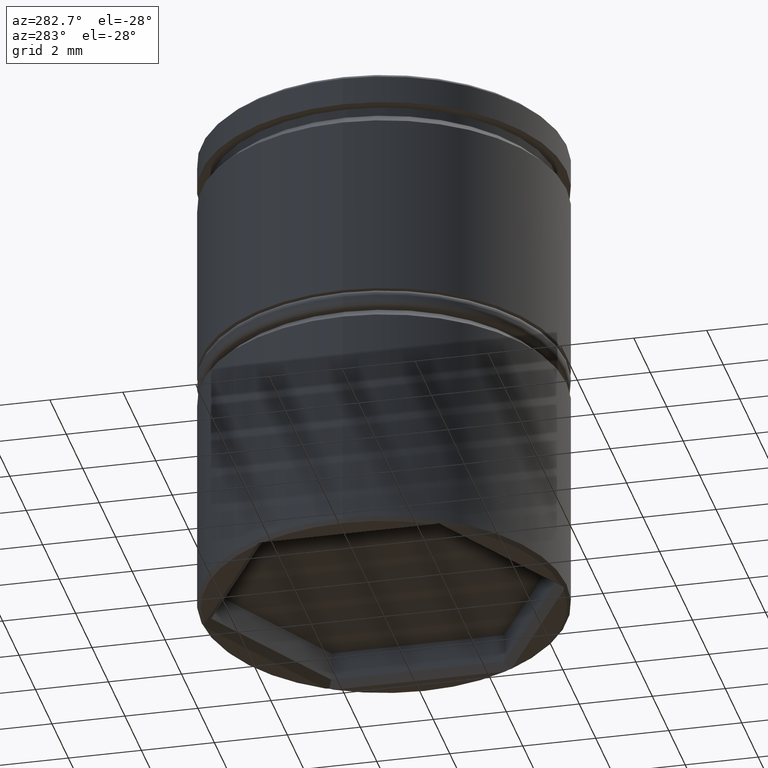
[diagram: clean part render]
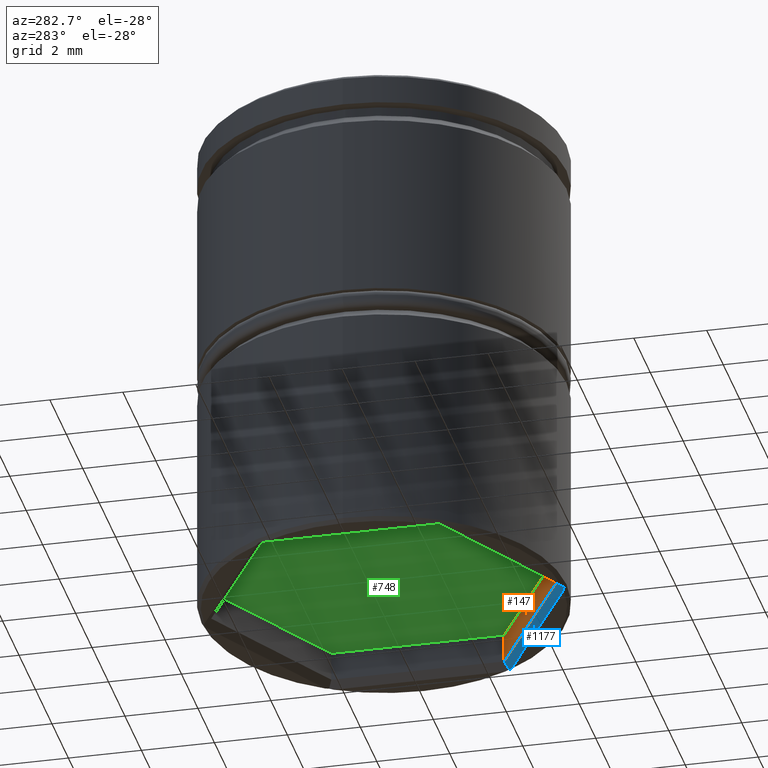
[diagram: same view with three faces highlighted in distinct colors, each labeled with its STEP entity id]
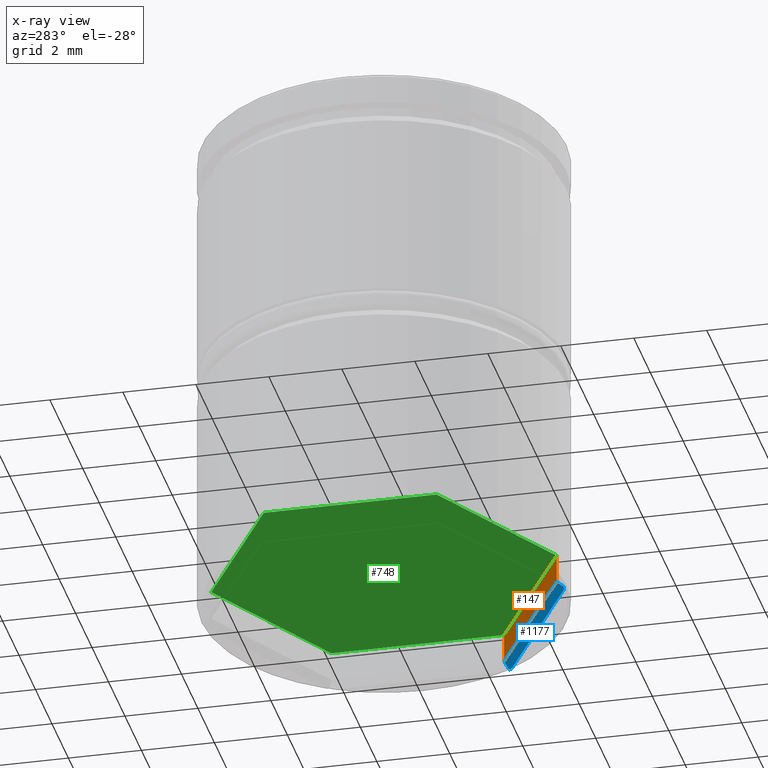
[diagram: x-ray of the same camera — body ghosted, the three highlighted faces saturated]
A machine part, auxiliary view with three faces highlighted in distinct colors.
The next image is the same camera in x-ray (body ghosted, the three faces saturated) — at least one of them is partly hidden behind the body in this view.
Their STEP definitions:

[orange] entity #147 — the highlighted planar face has unit normal (0.5, -0.866, 0).
#27 = CARTESIAN_POINT ( 'NONE',  ( 4.100000000000003197, -2.367136103677467407, -12.50000000000000000 ) ) ;
#48 = CARTESIAN_POINT ( 'NONE',  ( 4.100000000000003197, -2.367136103677467407, -12.50000000000000000 ) ) ;
#57 = LINE ( 'NONE', #398, #713 ) ;
#122 = ORIENTED_EDGE ( 'NONE', *, *, #646, .F. ) ;
#129 = DIRECTION ( 'NONE',  ( 0.4999999999999998890, -0.8660254037844387076, 0.000000000000000000 ) ) ;
#147 = ADVANCED_FACE ( 'NONE', ( #875 ), #996, .F. ) ;
#202 = LINE ( 'NONE', #626, #221 ) ;
#207 = DIRECTION ( 'NONE',  ( -0.000000000000000000, -0.000000000000000000, -1.000000000000000000 ) ) ;
#217 = ORIENTED_EDGE ( 'NONE', *, *, #1147, .T. ) ;
#221 = VECTOR ( 'NONE', #207, 1000.000000000000000 ) ;
#252 = LINE ( 'NONE', #681, #426 ) ;
#398 = CARTESIAN_POINT ( 'NONE',  ( -1.055420340465827135E-15, -4.734272207354934814, -13.30000000000000071 ) ) ;
#404 = VECTOR ( 'NONE', #774, 1000.000000000000000 ) ;
#426 = VECTOR ( 'NONE', #661, 1000.000000000000000 ) ;
#551 = ORIENTED_EDGE ( 'NONE', *, *, #628, .T. ) ;
#617 = ORIENTED_EDGE ( 'NONE', *, *, #960, .F. ) ;
#626 = CARTESIAN_POINT ( 'NONE',  ( -8.646952822150503169E-16, -4.734272207354934814, -12.50000000000000000 ) ) ;
#628 = EDGE_CURVE ( 'NONE', #644, #1224, #787, .T. ) ;
#644 = VERTEX_POINT ( 'NONE', #27 ) ;
#646 = EDGE_CURVE ( 'NONE', #644, #1098, #252, .T. ) ;
#661 = DIRECTION ( 'NONE',  ( -0.8660254037844387076, -0.4999999999999999445, 0.000000000000000000 ) ) ;
#671 = DIRECTION ( 'NONE',  ( 0.8660254037844387076, 0.4999999999999998890, 0.000000000000000000 ) ) ;
#681 = CARTESIAN_POINT ( 'NONE',  ( 4.100000000000003197, -2.367136103677467407, -12.50000000000000000 ) ) ;
#713 = VECTOR ( 'NONE', #1030, 1000.000000000000000 ) ;
#774 = DIRECTION ( 'NONE',  ( -0.000000000000000000, -0.000000000000000000, -1.000000000000000000 ) ) ;
#787 = LINE ( 'NONE', #1076, #404 ) ;
#829 = VERTEX_POINT ( 'NONE', #1327 ) ;
#875 = FACE_OUTER_BOUND ( 'NONE', #1351, .T. ) ;
#905 = CARTESIAN_POINT ( 'NONE',  ( 4.100000000000003197, -2.367136103677467407, -13.30000000000000071 ) ) ;
#960 = EDGE_CURVE ( 'NONE', #1098, #829, #202, .T. ) ;
#996 = PLANE ( 'NONE',  #1244 ) ;
#1030 = DIRECTION ( 'NONE',  ( -0.8660254037844387076, -0.4999999999999998890, 0.000000000000000000 ) ) ;
#1076 = CARTESIAN_POINT ( 'NONE',  ( 4.100000000000003197, -2.367136103677467407, -12.50000000000000000 ) ) ;
#1080 = CARTESIAN_POINT ( 'NONE',  ( -8.646952822150503169E-16, -4.734272207354934814, -12.50000000000000000 ) ) ;
#1098 = VERTEX_POINT ( 'NONE', #1080 ) ;
#1147 = EDGE_CURVE ( 'NONE', #1224, #829, #57, .T. ) ;
#1224 = VERTEX_POINT ( 'NONE', #905 ) ;
#1244 = AXIS2_PLACEMENT_3D ( 'NONE', #48, #129, #671 ) ;
#1327 = CARTESIAN_POINT ( 'NONE',  ( -8.646952822150503169E-16, -4.734272207354934814, -13.30000000000000071 ) ) ;
#1351 = EDGE_LOOP ( 'NONE', ( #551, #217, #617, #122 ) ) ;

[blue] entity #1177 — the highlighted planar face has unit normal (-0.3536, 0.6124, -0.7071).
#57 = LINE ( 'NONE', #398, #713 ) ;
#60 = VERTEX_POINT ( 'NONE', #858 ) ;
#63 = ORIENTED_EDGE ( 'NONE', *, *, #415, .F. ) ;
#84 = AXIS2_PLACEMENT_3D ( 'NONE', #498, #820, #695 ) ;
#101 = CARTESIAN_POINT ( 'NONE',  ( 4.269734859267344085, -2.465132570366329823, -13.46973485926734249 ) ) ;
#142 = ORIENTED_EDGE ( 'NONE', *, *, #413, .T. ) ;
#203 = DIRECTION ( 'NONE',  ( -2.853449050891065749E-15, 0.7559289460184529519, 0.6546536707079788631 ) ) ;
#320 = LINE ( 'NONE', #326, #817 ) ;
#326 = CARTESIAN_POINT ( 'NONE',  ( -8.646952822150503169E-16, -4.734272207354934814, -13.30000000000000071 ) ) ;
#398 = CARTESIAN_POINT ( 'NONE',  ( -1.055420340465827135E-15, -4.734272207354934814, -13.30000000000000071 ) ) ;
#403 = PLANE ( 'NONE',  #84 ) ;
#413 = EDGE_CURVE ( 'NONE', #1240, #829, #320, .T. ) ;
#415 = EDGE_CURVE ( 'NONE', #1240, #762, #631, .T. ) ;
#439 = CARTESIAN_POINT ( 'NONE',  ( 0.1153010050624148353, -4.898643248720162546, -13.50000000000000000 ) ) ;
#440 = B_SPLINE_CURVE_WITH_KNOTS ( 'NONE', 3,
 ( #847, #575, #973, #675 ),
 .UNSPECIFIED., .F., .F.,
 ( 4, 4 ),
 ( 0.000000000000000000, 0.0001233298202642847024 ),
 .UNSPECIFIED. ) ;
#442 = ORIENTED_EDGE ( 'NONE', *, *, #1000, .F. ) ;
#447 = CARTESIAN_POINT ( 'NONE',  ( 0.03844244460728142576, -4.919964518745060467, -13.48003548125494255 ) ) ;
#498 = CARTESIAN_POINT ( 'NONE',  ( 4.100000000000003197, -2.367136103677467407, -13.30000000000000071 ) ) ;
#515 = VERTEX_POINT ( 'NONE', #101 ) ;
#559 = VECTOR ( 'NONE', #988, 1000.000000000000000 ) ;
#575 = CARTESIAN_POINT ( 'NONE',  ( 4.213247191338549413, -2.521291069032199239, -13.49012571178598208 ) ) ;
#631 = B_SPLINE_CURVE_WITH_KNOTS ( 'NONE', 3,
 ( #1064, #447, #841, #439 ),
 .UNSPECIFIED., .F., .F.,
 ( 4, 4 ),
 ( 3.715151488605455489E-19, 0.0001233298202642841874 ),
 .UNSPECIFIED. ) ;
#672 = EDGE_CURVE ( 'NONE', #762, #60, #1180, .T. ) ;
#675 = CARTESIAN_POINT ( 'NONE',  ( 4.269734859267344085, -2.465132570366329823, -13.46973485926734249 ) ) ;
#695 = DIRECTION ( 'NONE',  ( 0.8660254037844387076, 0.4999999999999998890, 0.000000000000000000 ) ) ;
#713 = VECTOR ( 'NONE', #1030, 1000.000000000000000 ) ;
#716 = EDGE_LOOP ( 'NONE', ( #442, #794, #63, #142, #1215, #728 ) ) ;
#728 = ORIENTED_EDGE ( 'NONE', *, *, #1204, .T. ) ;
#762 = VERTEX_POINT ( 'NONE', #1354 ) ;
#793 = FACE_OUTER_BOUND ( 'NONE', #716, .T. ) ;
#794 = ORIENTED_EDGE ( 'NONE', *, *, #672, .F. ) ;
#817 = VECTOR ( 'NONE', #203, 1000.000000000000227 ) ;
#820 = DIRECTION ( 'NONE',  ( -0.3535533905932741194, 0.6123724356957952475, -0.7071067811865467956 ) ) ;
#829 = VERTEX_POINT ( 'NONE', #1327 ) ;
#841 = CARTESIAN_POINT ( 'NONE',  ( 0.07687852044743420654, -4.909424634638718921, -13.49012571178598208 ) ) ;
#847 = CARTESIAN_POINT ( 'NONE',  ( 4.184698994937584793, -2.549175223826011472, -13.50000000000000000 ) ) ;
#858 = CARTESIAN_POINT ( 'NONE',  ( 4.184698994937584793, -2.549175223826011472, -13.50000000000000000 ) ) ;
#905 = CARTESIAN_POINT ( 'NONE',  ( 4.100000000000003197, -2.367136103677467407, -13.30000000000000071 ) ) ;
#913 = DIRECTION ( 'NONE',  ( 0.6546536707079775308, -0.3779644730092258098, -0.6546536707079775308 ) ) ;
#973 = CARTESIAN_POINT ( 'NONE',  ( 4.241593036647661741, -2.493274392986013055, -13.48003548125494255 ) ) ;
#988 = DIRECTION ( 'NONE',  ( 0.8660254037844387076, 0.4999999999999998890, 0.000000000000000000 ) ) ;
#1000 = EDGE_CURVE ( 'NONE', #60, #515, #440, .T. ) ;
#1023 = CARTESIAN_POINT ( 'NONE',  ( 8.272119709809673951E-17, -4.930265140732660534, -13.46973485926734426 ) ) ;
#1030 = DIRECTION ( 'NONE',  ( -0.8660254037844387076, -0.4999999999999998890, 0.000000000000000000 ) ) ;
#1064 = CARTESIAN_POINT ( 'NONE',  ( 8.272119709809673951E-17, -4.930265140732660534, -13.46973485926734426 ) ) ;
#1124 = CARTESIAN_POINT ( 'NONE',  ( 2.928571428571434154, -1.690811502626767382, -12.12857142857143344 ) ) ;
#1147 = EDGE_CURVE ( 'NONE', #1224, #829, #57, .T. ) ;
#1177 = ADVANCED_FACE ( 'NONE', ( #793 ), #403, .T. ) ;
#1180 = LINE ( 'NONE', #1201, #559 ) ;
#1201 = CARTESIAN_POINT ( 'NONE',  ( 4.200000000000001954, -2.540341184434353305, -13.50000000000000000 ) ) ;
#1204 = EDGE_CURVE ( 'NONE', #1224, #515, #1242, .T. ) ;
#1215 = ORIENTED_EDGE ( 'NONE', *, *, #1147, .F. ) ;
#1224 = VERTEX_POINT ( 'NONE', #905 ) ;
#1240 = VERTEX_POINT ( 'NONE', #1023 ) ;
#1242 = LINE ( 'NONE', #1124, #1265 ) ;
#1265 = VECTOR ( 'NONE', #913, 1000.000000000000227 ) ;
#1327 = CARTESIAN_POINT ( 'NONE',  ( -8.646952822150503169E-16, -4.734272207354934814, -13.30000000000000071 ) ) ;
#1354 = CARTESIAN_POINT ( 'NONE',  ( 0.1153010050624148353, -4.898643248720162546, -13.50000000000000000 ) ) ;

[green] entity #748 — the highlighted planar face has unit normal (0, 0, -1).
#27 = CARTESIAN_POINT ( 'NONE',  ( 4.100000000000003197, -2.367136103677467407, -12.50000000000000000 ) ) ;
#38 = DIRECTION ( 'NONE',  ( 0.8660254037844387076, 0.4999999999999997224, 0.000000000000000000 ) ) ;
#78 = LINE ( 'NONE', #517, #1065 ) ;
#93 = VERTEX_POINT ( 'NONE', #959 ) ;
#109 = LINE ( 'NONE', #1005, #729 ) ;
#135 = CARTESIAN_POINT ( 'NONE',  ( 4.100000000000003197, 2.367136103677466963, -12.50000000000000000 ) ) ;
#141 = LINE ( 'NONE', #577, #379 ) ;
#163 = CARTESIAN_POINT ( 'NONE',  ( 0.000000000000000000, 0.000000000000000000, -12.50000000000000000 ) ) ;
#195 = EDGE_CURVE ( 'NONE', #653, #459, #141, .T. ) ;
#227 = ORIENTED_EDGE ( 'NONE', *, *, #1281, .T. ) ;
#228 = ORIENTED_EDGE ( 'NONE', *, *, #195, .T. ) ;
#252 = LINE ( 'NONE', #681, #426 ) ;
#288 = AXIS2_PLACEMENT_3D ( 'NONE', #163, #489, #929 ) ;
#300 = ORIENTED_EDGE ( 'NONE', *, *, #1223, .T. ) ;
#361 = DIRECTION ( 'NONE',  ( 0.8660254037844385966, -0.5000000000000001110, 0.000000000000000000 ) ) ;
#364 = VERTEX_POINT ( 'NONE', #925 ) ;
#379 = VECTOR ( 'NONE', #38, 1000.000000000000114 ) ;
#384 = PLANE ( 'NONE',  #288 ) ;
#426 = VECTOR ( 'NONE', #661, 1000.000000000000000 ) ;
#459 = VERTEX_POINT ( 'NONE', #1368 ) ;
#467 = LINE ( 'NONE', #135, #845 ) ;
#489 = DIRECTION ( 'NONE',  ( 0.000000000000000000, 0.000000000000000000, -1.000000000000000000 ) ) ;
#510 = LINE ( 'NONE', #1212, #665 ) ;
#517 = CARTESIAN_POINT ( 'NONE',  ( -4.100000000000002309, -2.367136103677466963, -12.50000000000000000 ) ) ;
#526 = ORIENTED_EDGE ( 'NONE', *, *, #543, .T. ) ;
#543 = EDGE_CURVE ( 'NONE', #459, #93, #109, .T. ) ;
#577 = CARTESIAN_POINT ( 'NONE',  ( -4.100000000000003197, 2.367136103677469183, -12.50000000000000000 ) ) ;
#592 = ORIENTED_EDGE ( 'NONE', *, *, #651, .T. ) ;
#644 = VERTEX_POINT ( 'NONE', #27 ) ;
#646 = EDGE_CURVE ( 'NONE', #644, #1098, #252, .T. ) ;
#651 = EDGE_CURVE ( 'NONE', #93, #644, #467, .T. ) ;
#653 = VERTEX_POINT ( 'NONE', #886 ) ;
#661 = DIRECTION ( 'NONE',  ( -0.8660254037844387076, -0.4999999999999999445, 0.000000000000000000 ) ) ;
#665 = VECTOR ( 'NONE', #1115, 1000.000000000000227 ) ;
#681 = CARTESIAN_POINT ( 'NONE',  ( 4.100000000000003197, -2.367136103677467407, -12.50000000000000000 ) ) ;
#729 = VECTOR ( 'NONE', #361, 1000.000000000000000 ) ;
#748 = ADVANCED_FACE ( 'NONE', ( #1225 ), #384, .T. ) ;
#845 = VECTOR ( 'NONE', #1297, 1000.000000000000000 ) ;
#886 = CARTESIAN_POINT ( 'NONE',  ( -4.100000000000003197, 2.367136103677469183, -12.50000000000000000 ) ) ;
#925 = CARTESIAN_POINT ( 'NONE',  ( -4.100000000000002309, -2.367136103677466963, -12.50000000000000000 ) ) ;
#929 = DIRECTION ( 'NONE',  ( -1.000000000000000000, 0.000000000000000000, -0.000000000000000000 ) ) ;
#935 = DIRECTION ( 'NONE',  ( -1.832090974069704843E-16, 1.000000000000000000, 0.000000000000000000 ) ) ;
#959 = CARTESIAN_POINT ( 'NONE',  ( 4.100000000000003197, 2.367136103677466963, -12.50000000000000000 ) ) ;
#1005 = CARTESIAN_POINT ( 'NONE',  ( 0.000000000000000000, 4.734272207354934814, -12.50000000000000000 ) ) ;
#1065 = VECTOR ( 'NONE', #935, 1000.000000000000000 ) ;
#1071 = EDGE_LOOP ( 'NONE', ( #228, #526, #592, #1257, #300, #227 ) ) ;
#1080 = CARTESIAN_POINT ( 'NONE',  ( -8.646952822150503169E-16, -4.734272207354934814, -12.50000000000000000 ) ) ;
#1098 = VERTEX_POINT ( 'NONE', #1080 ) ;
#1115 = DIRECTION ( 'NONE',  ( -0.8660254037844384856, 0.5000000000000002220, 0.000000000000000000 ) ) ;
#1212 = CARTESIAN_POINT ( 'NONE',  ( -8.646952822150503169E-16, -4.734272207354934814, -12.50000000000000000 ) ) ;
#1223 = EDGE_CURVE ( 'NONE', #1098, #364, #510, .T. ) ;
#1225 = FACE_OUTER_BOUND ( 'NONE', #1071, .T. ) ;
#1257 = ORIENTED_EDGE ( 'NONE', *, *, #646, .T. ) ;
#1281 = EDGE_CURVE ( 'NONE', #364, #653, #78, .T. ) ;
#1297 = DIRECTION ( 'NONE',  ( 0.000000000000000000, -1.000000000000000000, 0.000000000000000000 ) ) ;
#1368 = CARTESIAN_POINT ( 'NONE',  ( 0.000000000000000000, 4.734272207354934814, -12.50000000000000000 ) ) ;